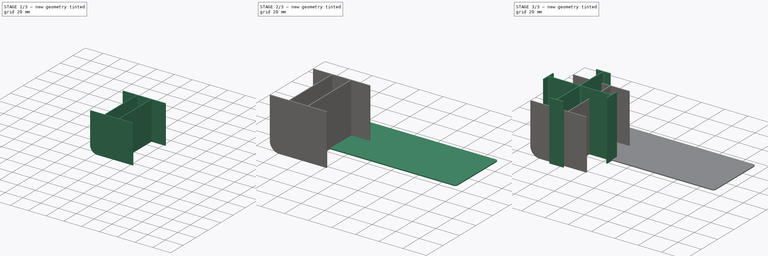
[diagram: build sequence overview — one tinted view per stage of 3, left to right]
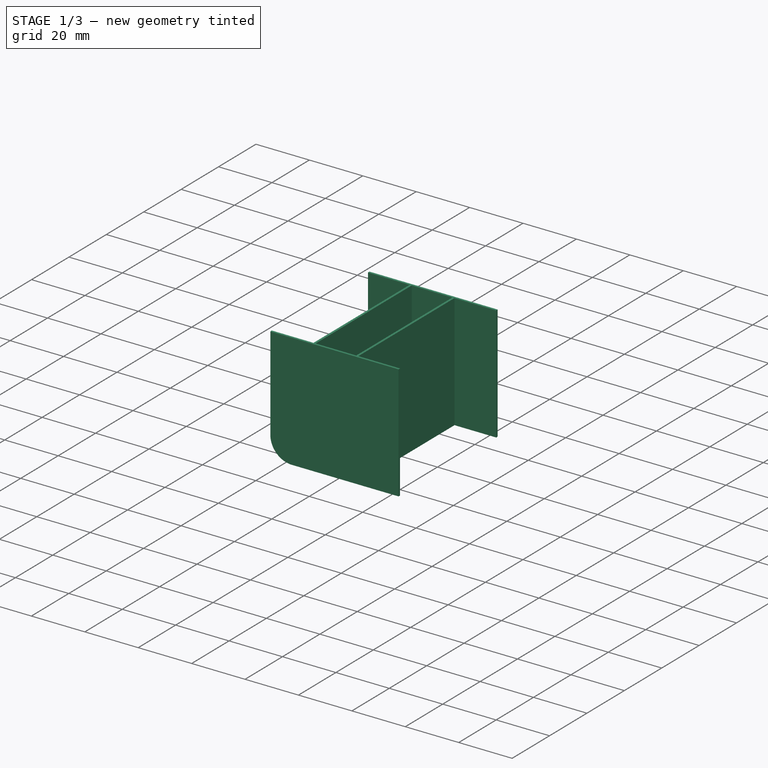
[diagram: stage 1 of 3 — iso view after this stage's code; geometry added in this stage tinted green]
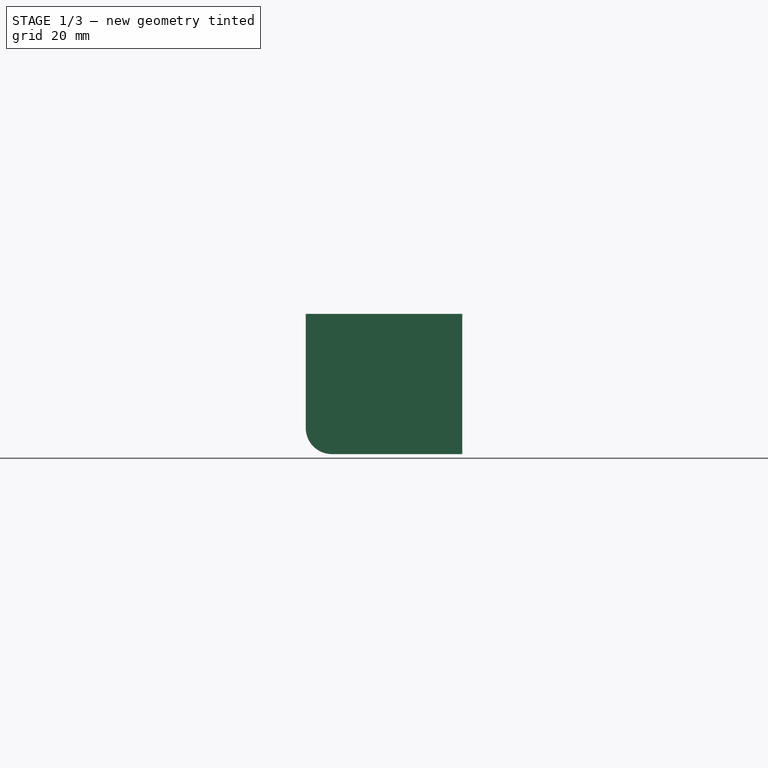
[diagram: stage 1 of 3 — front view after this stage's code; geometry added in this stage tinted green]
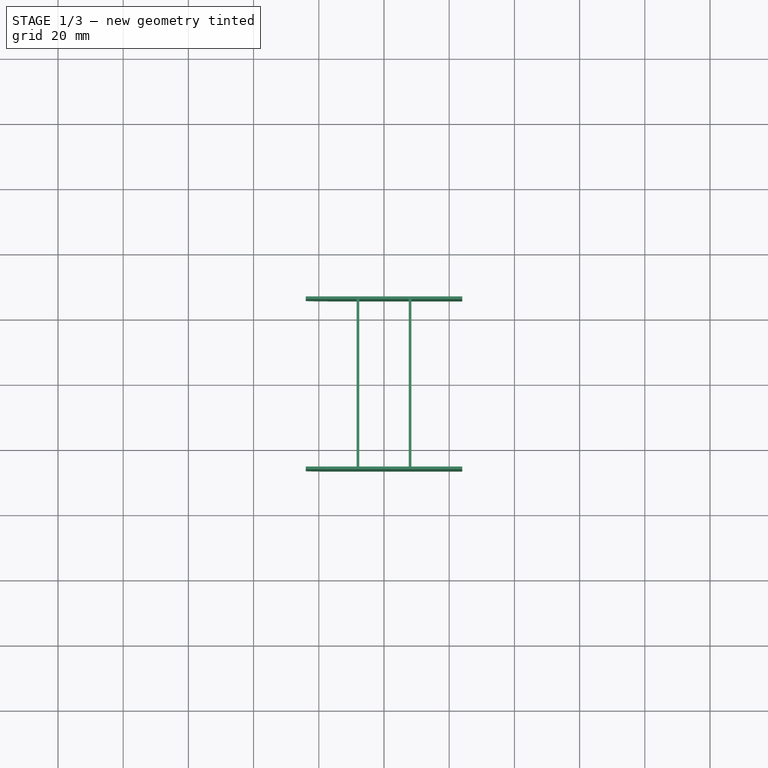
[diagram: stage 1 of 3 — top view after this stage's code; geometry added in this stage tinted green]
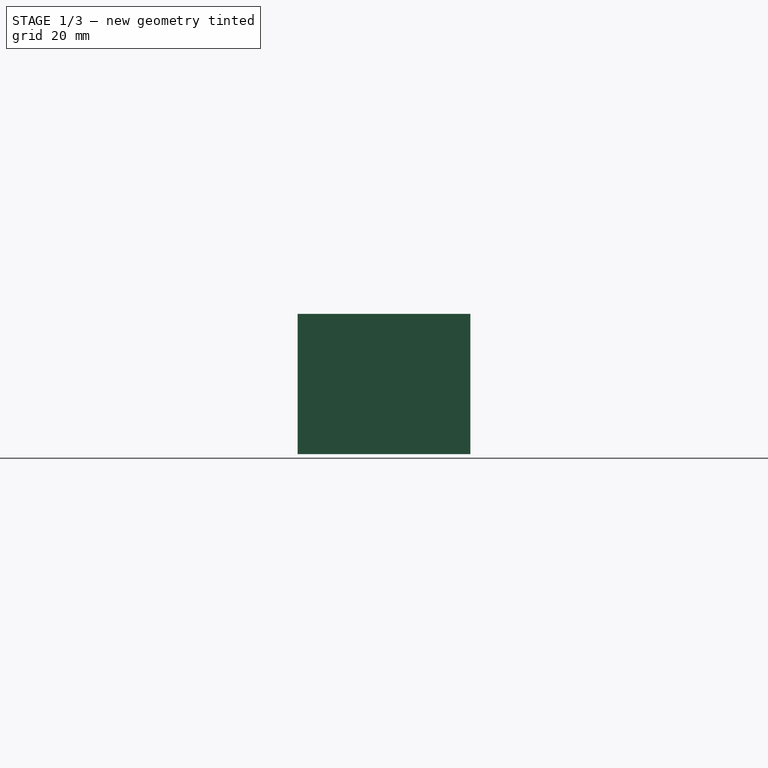
[diagram: stage 1 of 3 — right view after this stage's code; geometry added in this stage tinted green]
FCSTD DOCUMENT  (FreeCAD 0.19R24366 (Git))
Label: BoxSep
License: All rights reserved
LicenseURL: http://en.wikipedia.org/wiki/All_rights_reserved
objects: PartDesign::Fillet×3, PartDesign::Body×3, Sketcher::SketchObject×2, PartDesign::Pad×2, PartDesign::AdditiveBox×1
note: 17 computed .brp shape members not serialized (recipe doc carries the construction recipe); baked Part::Feature solids carry a one-line shape summary decoded from their .brp

FEATURE [PartDesign::Body] Body
  Group = -> [Box,Fillet001]
  Origin = -> Origin003
  Tip = -> Fillet001
FEATURE [Sketcher::SketchObject] Sketch001
  FullyConstrained = true
  MapMode = 5
  Support = -> [XY_Plane004]
  sketch-geometry (24):
    g0: LineSegment StartX=-24 StartY=26.5 StartZ=0 EndX=24 EndY=26.5 EndZ=0
    g1: LineSegment StartX=24 StartY=26.5 StartZ=0 EndX=24 EndY=-26.5 EndZ=0
    g2: LineSegment StartX=-24 StartY=-26.5 StartZ=0 EndX=-24 EndY=26.5 EndZ=0
    g3: LineSegment StartX=-24 StartY=-26.5 StartZ=0 EndX=-8 EndY=-26.5 EndZ=0
    g4: LineSegment StartX=-8 StartY=-26.5 StartZ=0 EndX=8 EndY=-26.5 EndZ=0
    g5: LineSegment StartX=8 StartY=-26.5 StartZ=0 EndX=24 EndY=-26.5 EndZ=0
    g6: LineSegment StartX=-8 StartY=-26.5 StartZ=0 EndX=-8 EndY=26.5 EndZ=0
    g7: LineSegment StartX=8 StartY=-26.5 StartZ=0 EndX=8 EndY=26.5 EndZ=0
    g8: LineSegment StartX=-24 StartY=26.5 StartZ=0 EndX=-24 EndY=25.7 EndZ=0
    g9: LineSegment StartX=-24 StartY=25.7 StartZ=0 EndX=-8.4 EndY=25.7 EndZ=0
    g10: LineSegment StartX=-8.4 StartY=25.7 StartZ=0 EndX=-8.4 EndY=-25.7 EndZ=0
    g11: LineSegment StartX=-8.4 StartY=-25.7 StartZ=0 EndX=-24 EndY=-25.7 EndZ=0
    g12: LineSegment StartX=-24 StartY=-25.7 StartZ=0 EndX=-24 EndY=-26.5 EndZ=0
    g13: LineSegment StartX=-7.6 StartY=25.7 StartZ=0 EndX=7.6 EndY=25.7 EndZ=0
    g14: LineSegment StartX=7.6 StartY=25.7 StartZ=0 EndX=7.6 EndY=-25.7 EndZ=0
    g15: LineSegment StartX=7.6 StartY=-25.7 StartZ=0 EndX=-7.6 EndY=-25.7 EndZ=0
    g16: LineSegment StartX=-7.6 StartY=-25.7 StartZ=0 EndX=-7.6 EndY=25.7 EndZ=0
    g17: LineSegment StartX=-8.4 StartY=25.7 StartZ=0 EndX=-7.6 EndY=25.7 EndZ=0
    g18: LineSegment StartX=24 StartY=26.5 StartZ=0 EndX=24 EndY=25.7 EndZ=0
    g19: LineSegment StartX=24 StartY=25.7 StartZ=0 EndX=8.4 EndY=25.7 EndZ=0
    g20: LineSegment StartX=8.4 StartY=25.7 StartZ=0 EndX=8.4 EndY=-25.7 EndZ=0
    g21: LineSegment StartX=8.4 StartY=-25.7 StartZ=0 EndX=24 EndY=-25.7 EndZ=0
    g22: LineSegment StartX=24 StartY=-25.7 StartZ=0 EndX=24 EndY=-26.5 EndZ=0
    g23: LineSegment StartX=7.6 StartY=25.7 StartZ=0 EndX=8.4 EndY=25.7 EndZ=0
  constraints (65):
    c: Coincident(g0,g1)
    c: Coincident(g2,g0)
    c: Horizontal(g0)
    c: Vertical(g1)
    c: Vertical(g2)
    c: DistanceX(g0,g0) = 48
    c: DistanceY(g2,g2) = 53
    c: Symmetric(g0,g1,g-1)  '__ANCHOR__'
    c: Coincident(g2,g3)
    c: Horizontal(g3)
    c: Coincident(g3,g4)
    c: Horizontal(g4)
    c: Coincident(g4,g5)
    c: Coincident(g5,g1)
    c: Horizontal(g5)
    c: Equal(g5,g4)
    c: Equal(g4,g3)
    c: Coincident(g6,g3)
    c: PointOnObject(g6,g0)
    c: Vertical(g6)
    c: Coincident(g7,g4)
    c: PointOnObject(g7,g0)
    c: Vertical(g7)
    c: Coincident(g8,g0)
    c: Vertical(g8)
    c: Distance(g8) = 0.8
    c: Coincident(g9,g8)
    c: Horizontal(g9)
    c: Coincident(g10,g9)
    c: Vertical(g10)
    c: Coincident(g11,g10)
    c: Horizontal(g11)
    c: Coincident(g12,g11)
    c: Coincident(g12,g3)
    c: Vertical(g12)
    c: Equal(g12,g8)
    c: Coincident(g13,g14)
    c: Coincident(g14,g15)
    c: Coincident(g15,g16)
    c: Coincident(g16,g13)
    c: Horizontal(g13)
    c: Horizontal(g15)
    c: Vertical(g14)
    c: Vertical(g16)
    c: PointOnObject(g15,g11)
    c: Coincident(g17,g9)
    c: Coincident(g17,g13)
    c: Symmetric(g9,g13,g6)
    c: Equal(g17,g12)
    c: Coincident(g18,g0)
    c: Coincident(g19,g18)
    c: Horizontal(g19)
    c: Coincident(g20,g19)
    c: Vertical(g20)
    c: Coincident(g21,g20)
    c: Horizontal(g21)
    c: Coincident(g22,g21)
    c: Coincident(g22,g5)
    c: Vertical(g18)
    c: Vertical(g22)
    c: PointOnObject(g20,g15)
    c: Coincident(g23,g13)
    c: Coincident(g23,g19)
    c: Equal(g23,g17)
    c: Symmetric(g13,g19,g7)
FEATURE [PartDesign::Pad] Pad001
  Direction = (1,1,1)
  Length = 43
  Length2 = 100
  Profile = -> Sketch001
  Type = 0
FEATURE [PartDesign::Fillet] Fillet002
  Base = -> Pad001 [Edge3,Edge33]
  BaseFeature = -> Pad001
  Radius = 8
  SupportTransform = false
FEATURE [PartDesign::Body] Body001  label="ScrewSep3-side"
  Group = -> [Sketch001,Pad001,Fillet002]
  Origin = -> Origin004
  Tip = -> Fillet002
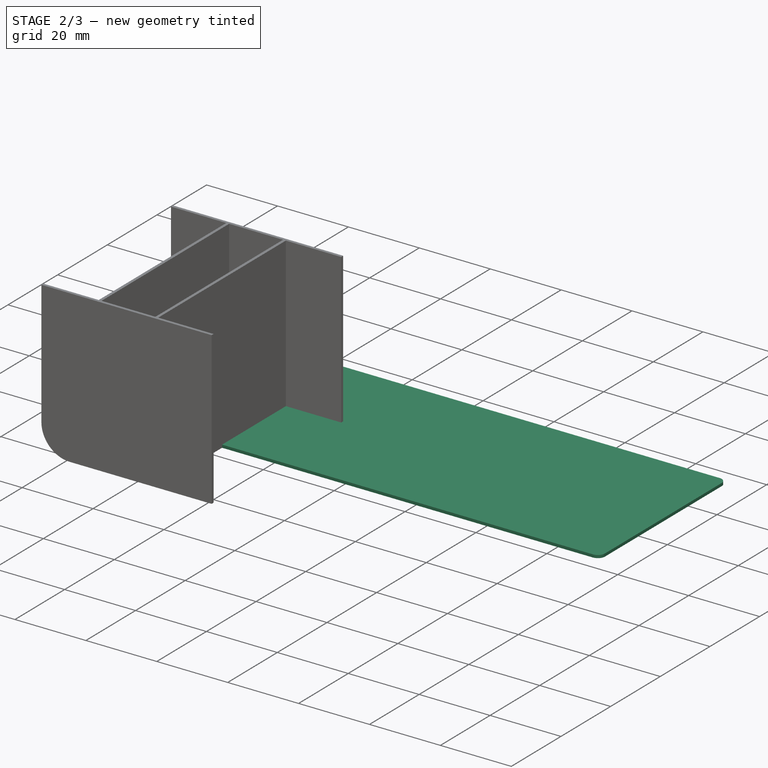
[diagram: stage 2 of 3 — iso view after this stage's code; geometry added in this stage tinted green]
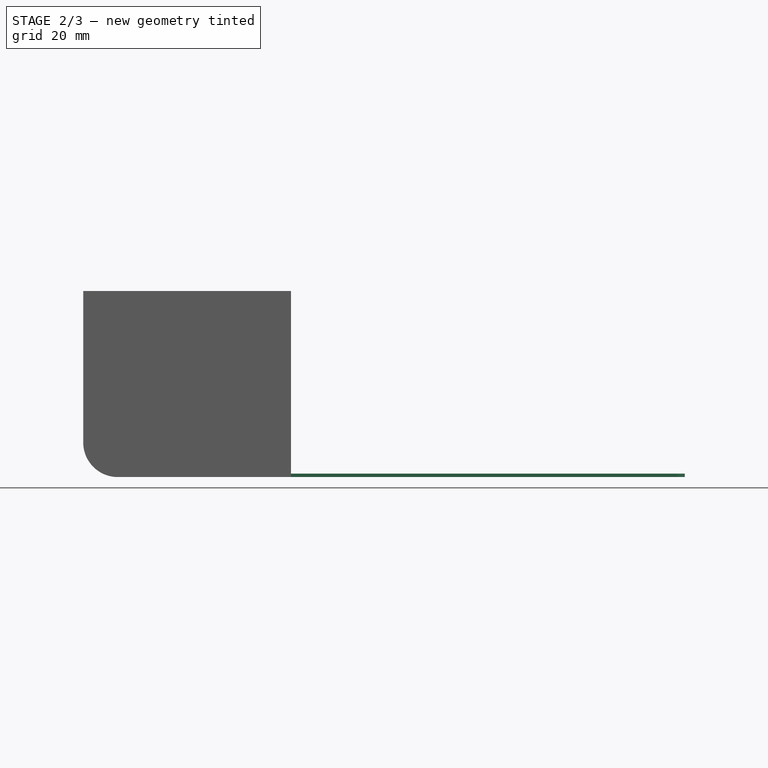
[diagram: stage 2 of 3 — front view after this stage's code; geometry added in this stage tinted green]
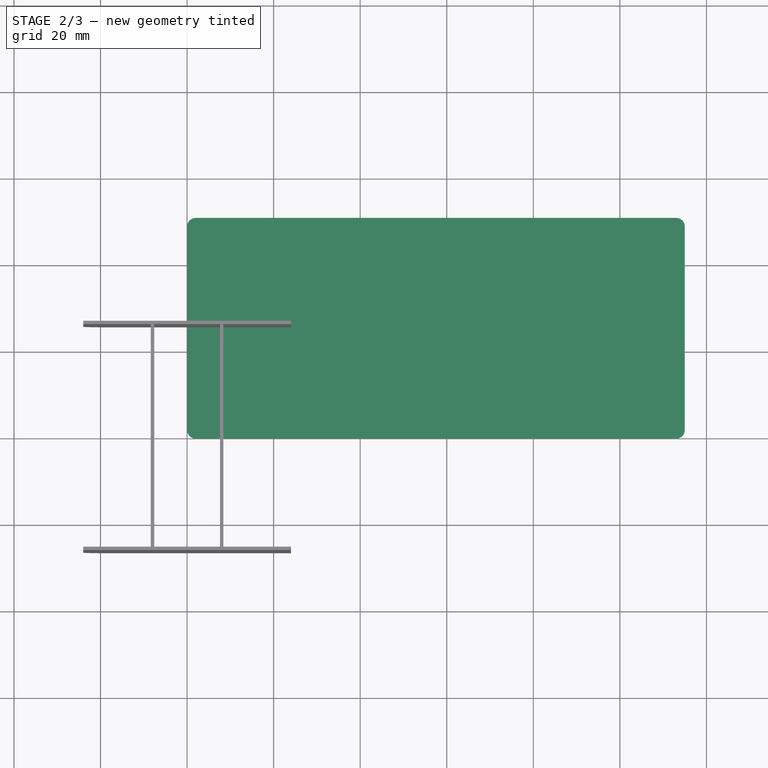
[diagram: stage 2 of 3 — top view after this stage's code; geometry added in this stage tinted green]
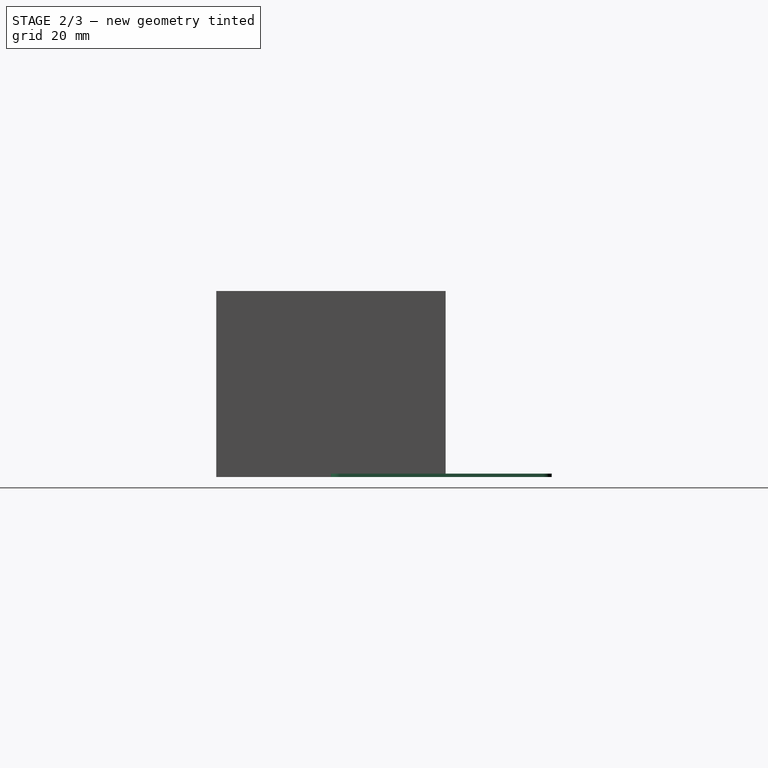
[diagram: stage 2 of 3 — right view after this stage's code; geometry added in this stage tinted green]
FEATURE [PartDesign::Body] FilletBody  label="CrossBody"
  Group = -> [Sketch,Pad,Fillet]
  Origin = -> Origin001
  Tip = -> Fillet
FEATURE [PartDesign::AdditiveBox] Box
  AttacherType = Attacher::AttachEngine3D
  Height = 0.8
  Length = 115
  MapMode = 5
  Support = -> [XY_Plane003]
  Width = 51
FEATURE [PartDesign::Fillet] Fillet001  label="Corners"
  Base = -> Box [Edge3,Edge7,Edge5,Edge1]
  BaseFeature = -> Box
  Radius = 2
  SupportTransform = false
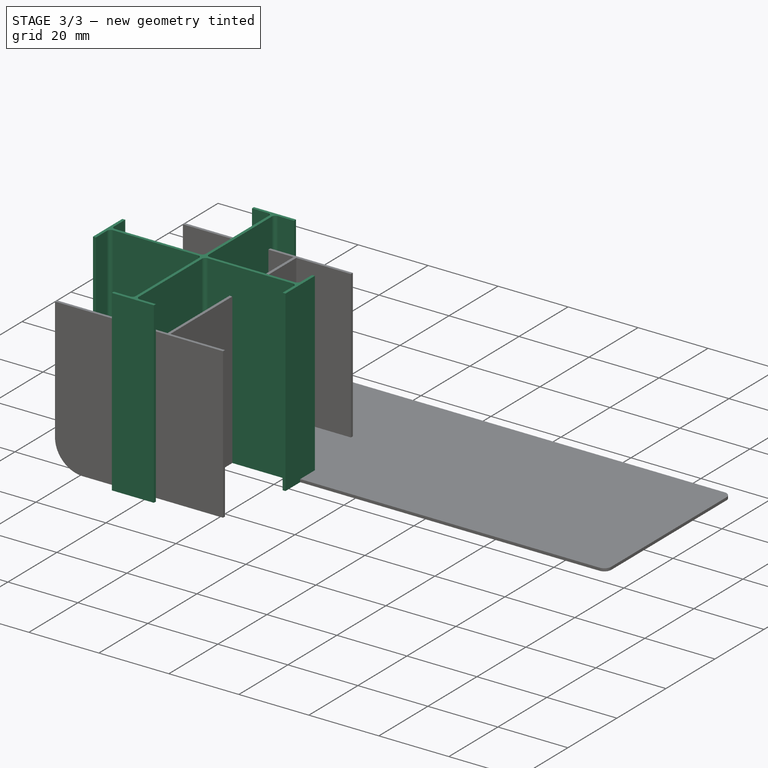
[diagram: stage 3 of 3 — iso view after this stage's code; geometry added in this stage tinted green]
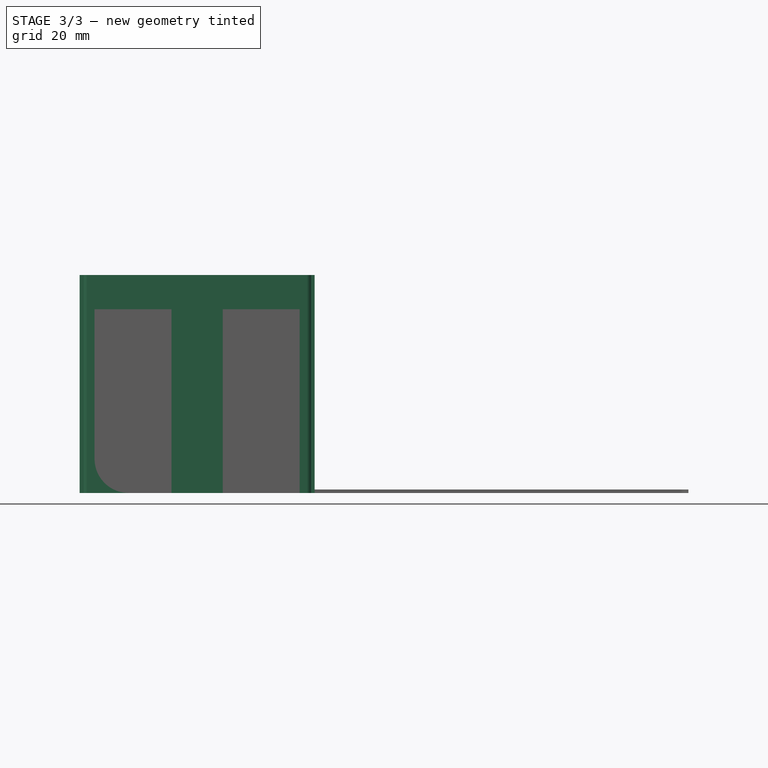
[diagram: stage 3 of 3 — front view after this stage's code; geometry added in this stage tinted green]
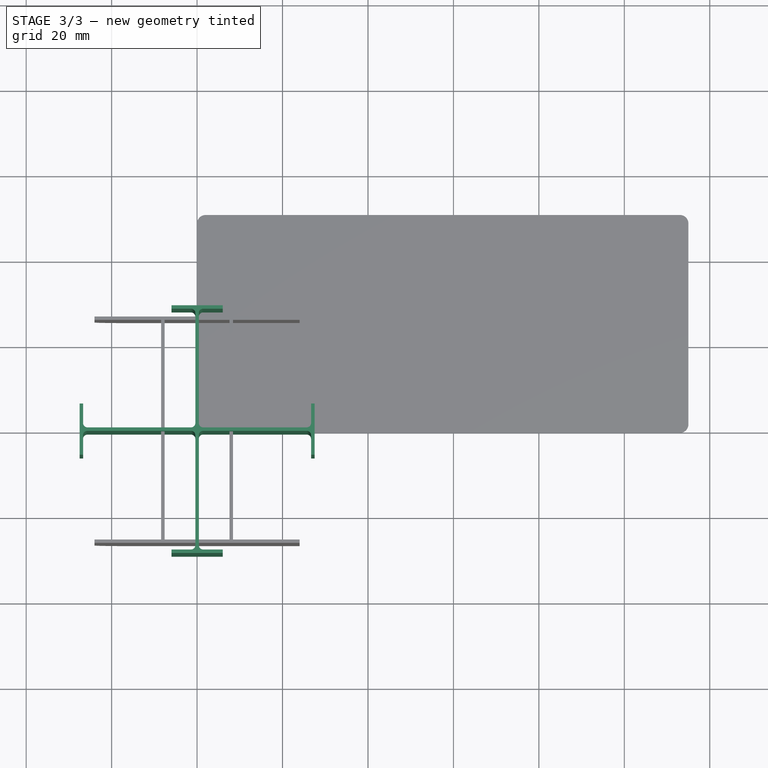
[diagram: stage 3 of 3 — top view after this stage's code; geometry added in this stage tinted green]
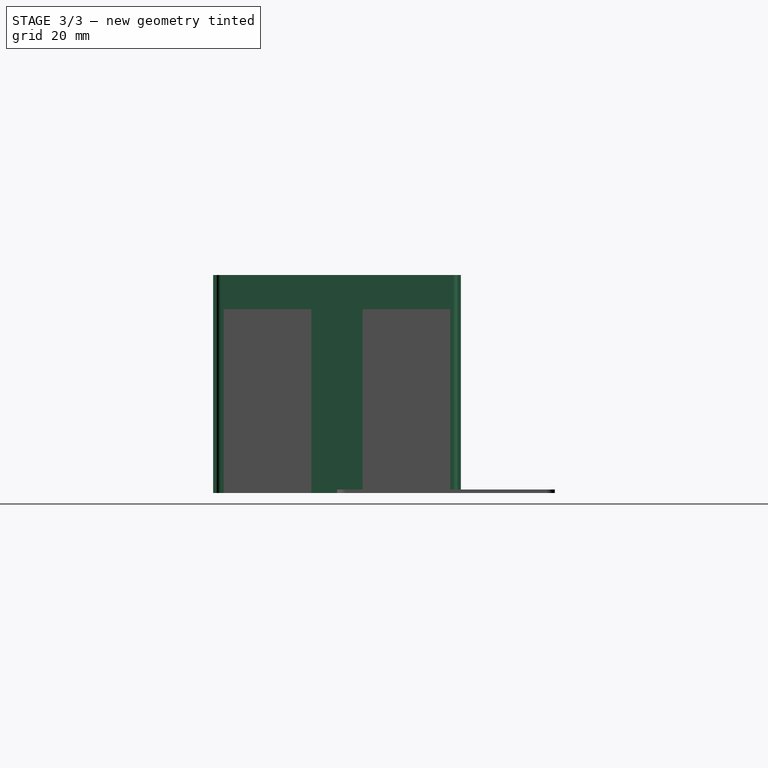
[diagram: stage 3 of 3 — right view after this stage's code; geometry added in this stage tinted green]
FEATURE [Sketcher::SketchObject] Sketch  label="Cross"
  FullyConstrained = false
  MapMode = 5
  Support = -> [XY_Plane001]
  sketch-geometry (36):
    g0: LineSegment StartX=-27.5 StartY=29 StartZ=0 EndX=27.5 EndY=29 EndZ=0
    g1: LineSegment StartX=27.5 StartY=29 StartZ=0 EndX=27.5 EndY=-29 EndZ=0
    g2: LineSegment StartX=27.5 StartY=-29 StartZ=0 EndX=-27.5 EndY=-29 EndZ=0
    g3: LineSegment StartX=-27.5 StartY=-29 StartZ=0 EndX=-27.5 EndY=29 EndZ=0
    g4: LineSegment StartX=-27.5 StartY=6 StartZ=0 EndX=-27.5 EndY=-6 EndZ=0
    g5: LineSegment StartX=27.5 StartY=6 StartZ=0 EndX=27.5 EndY=-6 EndZ=0
    g6: LineSegment StartX=-6 StartY=29 StartZ=0 EndX=6 EndY=29 EndZ=0
    g7: LineSegment StartX=-6 StartY=-29 StartZ=0 EndX=6 EndY=-29 EndZ=0
    g8: LineSegment StartX=-27.5 StartY=6 StartZ=0 EndX=-26.68 EndY=6 EndZ=0
    g9: LineSegment StartX=-27.5 StartY=-6 StartZ=0 EndX=-26.68 EndY=-6 EndZ=0
    g10: LineSegment StartX=-26.68 StartY=6 StartZ=0 EndX=-26.68 EndY=0.41 EndZ=0
    g11: LineSegment StartX=-26.68 StartY=-6 StartZ=0 EndX=-26.68 EndY=-0.41 EndZ=0
    g12: LineSegment StartX=-26.68 StartY=0.41 StartZ=0 EndX=-0.41 EndY=0.41 EndZ=0
    g13: LineSegment StartX=-26.68 StartY=-0.41 StartZ=0 EndX=-0.41 EndY=-0.41 EndZ=0
    g14: LineSegment StartX=-6 StartY=29 StartZ=0 EndX=-6 EndY=28.18 EndZ=0
    g15: LineSegment StartX=-6 StartY=28.18 StartZ=0 EndX=-0.41 EndY=28.18 EndZ=0
    g16: LineSegment StartX=-0.41 StartY=28.18 StartZ=0 EndX=-0.41 EndY=0.41 EndZ=0
    g17: LineSegment StartX=6 StartY=29 StartZ=0 EndX=6 EndY=28.18 EndZ=0
    g18: LineSegment StartX=6 StartY=28.18 StartZ=0 EndX=0.41 EndY=28.18 EndZ=0
    g19: LineSegment StartX=0.41 StartY=28.18 StartZ=0 EndX=0.41 EndY=0.41 EndZ=0
    g20: LineSegment StartX=-0.41 StartY=0.41 StartZ=0 EndX=0.41 EndY=0.41 EndZ=0
    g21: LineSegment StartX=0.41 StartY=0.41 StartZ=0 EndX=0.41 EndY=-0.41 EndZ=0
    g22: LineSegment StartX=0.41 StartY=-0.41 StartZ=0 EndX=-0.41 EndY=-0.41 EndZ=0
    g23: LineSegment StartX=-0.41 StartY=-0.41 StartZ=0 EndX=-0.41 EndY=0.41 EndZ=0
    g24: LineSegment StartX=27.5 StartY=6 StartZ=0 EndX=26.68 EndY=6 EndZ=0
    g25: LineSegment StartX=26.68 StartY=6 StartZ=0 EndX=26.68 EndY=0.41 EndZ=0
    g26: LineSegment StartX=26.68 StartY=0.41 StartZ=0 EndX=0.41 EndY=0.41 EndZ=0
    g27: LineSegment StartX=27.5 StartY=-6 StartZ=0 EndX=26.68 EndY=-6 EndZ=0
    g28: LineSegment StartX=26.68 StartY=-6 StartZ=0 EndX=26.68 EndY=-0.41 EndZ=0
    g29: LineSegment StartX=26.68 StartY=-0.41 StartZ=0 EndX=0.41 EndY=-0.41 EndZ=0
    g30: LineSegment StartX=-0.41 StartY=-0.41 StartZ=0 EndX=-0.41 EndY=-28.18 EndZ=0
    g31: LineSegment StartX=-0.41 StartY=-28.18 StartZ=0 EndX=-6 EndY=-28.18 EndZ=0
    g32: LineSegment StartX=-6 StartY=-28.18 StartZ=0 EndX=-6 EndY=-29 EndZ=0
    g33: LineSegment StartX=0.41 StartY=-0.41 StartZ=0 EndX=0.41 EndY=-28.18 EndZ=0
    g34: LineSegment StartX=0.41 StartY=-28.18 StartZ=0 EndX=6 EndY=-28.18 EndZ=0
    g35: LineSegment StartX=6 StartY=-28.18 StartZ=0 EndX=6 EndY=-29 EndZ=0
  constraints (103):
    c: Coincident(g0,g1)
    c: Coincident(g1,g2)
    c: Coincident(g2,g3)
    c: Coincident(g3,g0)
    c: Horizontal(g0)
    c: Horizontal(g2)
    c: Vertical(g1)
    c: Vertical(g3)
    c: Symmetric(g0,g1,g-1)
    c: DistanceY(g3,g3) = 58
    c: DistanceX(g0,g0) = 55
    c: PointOnObject(g4,g3)
    c: PointOnObject(g4,g3)
    c: Symmetric(g4,g4,g-1)
    c: DistanceY(g4,g4) = 12
    c: PointOnObject(g5,g1)
    c: PointOnObject(g5,g1)
    c: Symmetric(g5,g5,g-1)
    c: PointOnObject(g6,g0)
    c: PointOnObject(g6,g0)
    c: PointOnObject(g7,g2)
    c: PointOnObject(g7,g2)
    c: Symmetric(g7,g7,g-2)
    c: Symmetric(g6,g6,g-2)
    c: Equal(g4,g5)
    c: Equal(g5,g6)
    c: Equal(g6,g7)
    c: Coincident(g8,g4)
    c: Horizontal(g8)
    c: Coincident(g9,g4)
    c: Horizontal(g9)
    c: DistanceX(g8,g8) = 0.82
    c: Equal(g8,g9)
    c: Coincident(g10,g8)
    c: Vertical(g10)
    c: Coincident(g11,g9)
    c: Vertical(g11)
    c: Equal(g10,g11)
    c: Coincident(g12,g10)
    c: Horizontal(g12)
    c: Coincident(g13,g11)
    c: Horizontal(g13)
    c: Coincident(g6,g14)
    c: Vertical(g14)
    c: Coincident(g14,g15)
    c: Horizontal(g15)
    c: Coincident(g15,g16)
    c: Coincident(g16,g12)
    c: Vertical(g16)
    c: Coincident(g6,g17)
    c: Vertical(g17)
    c: Coincident(g17,g18)
    c: Horizontal(g18)
    c: Coincident(g18,g19)
    c: Vertical(g19)
    c: Coincident(g20,g21)
    c: Coincident(g21,g22)
    c: Coincident(g22,g23)
    c: Coincident(g23,g20)
    c: Horizontal(g20)
    c: Horizontal(g22)
    c: Vertical(g21)
    c: Vertical(g23)
    c: Coincident(g20,g12)
    c: Equal(g8,g23)
    c: Symmetric(g12,g21,g-1)
    c: Equal(g23,g20)
    c: Equal(g8,g14)
    c: Coincident(g13,g22)
    c: Coincident(g19,g20)
    c: Equal(g14,g17)
    c: Coincident(g5,g24)
    c: Horizontal(g24)
    c: Coincident(g24,g25)
    c: Vertical(g25)
    c: Coincident(g25,g26)
    c: Coincident(g26,g19)
    c: Horizontal(g26)
    c: Coincident(g5,g27)
    c: Horizontal(g27)
    c: Coincident(g27,g28)
    c: Vertical(g28)
    c: Coincident(g28,g29)
    c: Coincident(g29,g21)
    c: Horizontal(g29)
    c: Equal(g17,g24)
    c: Equal(g24,g27)
    c: Coincident(g13,g30)
    c: Vertical(g30)
    c: Coincident(g30,g31)
    c: Horizontal(g31)
    c: Coincident(g31,g32)
    c: Coincident(g32,g7)
    c: Vertical(g32)
    c: Coincident(g21,g33)
    c: Vertical(g33)
    c: Coincident(g33,g34)
    c: Horizontal(g34)
    c: Coincident(g34,g35)
    c: Coincident(g35,g7)
    c: Vertical(g35)
    c: Equal(g27,g35)
    c: Equal(g35,g32)
FEATURE [PartDesign::Pad] Pad  label="_Cross"
  AllowMultiFace = false
  Direction = (1,1,1)
  Length = 51
  Length2 = 100
  Profile = -> Sketch
  Type = 0
FEATURE [PartDesign::Fillet] Fillet
  Base = -> Pad [Edge11,Edge35,Edge59,Edge14,Edge74,Edge38,Edge77,Edge17,Edge53,Edge56,Edge32,Edge80]
  BaseFeature = -> Pad
  Radius = 1
  SupportTransform = false
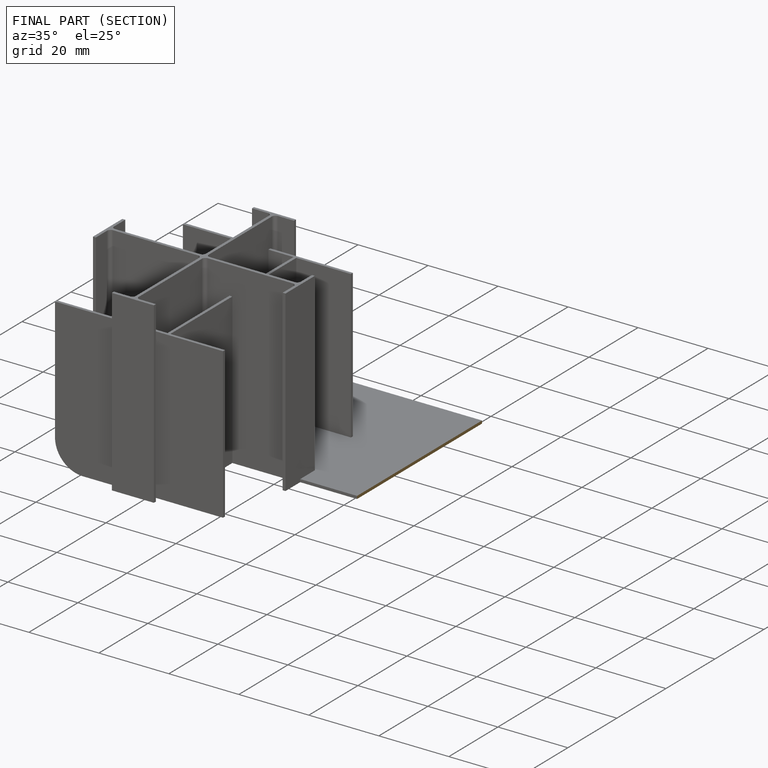
[diagram: finished part — half-section view (interior)]
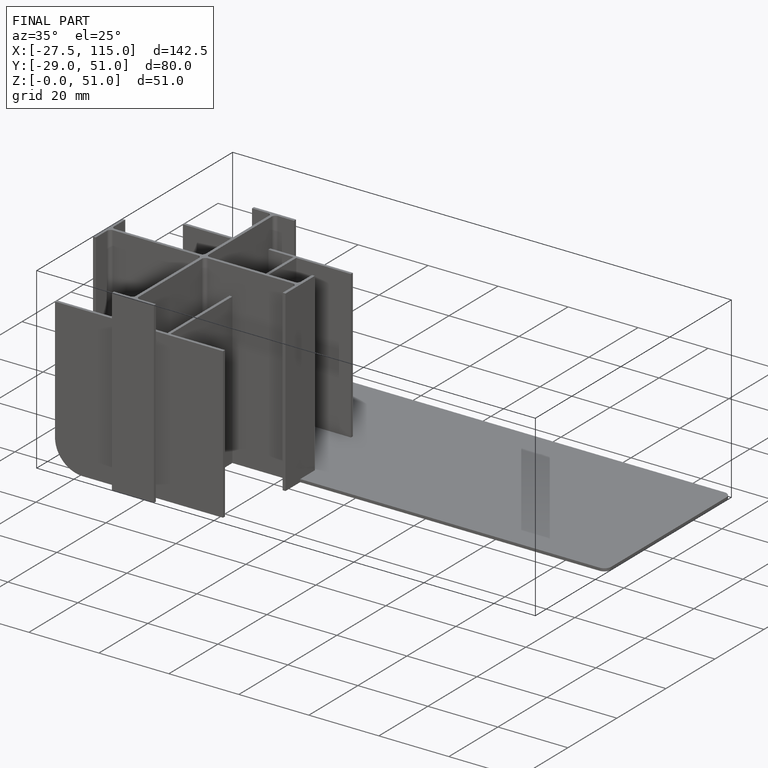
[diagram: finished part — iso view with bounding-box wireframe]
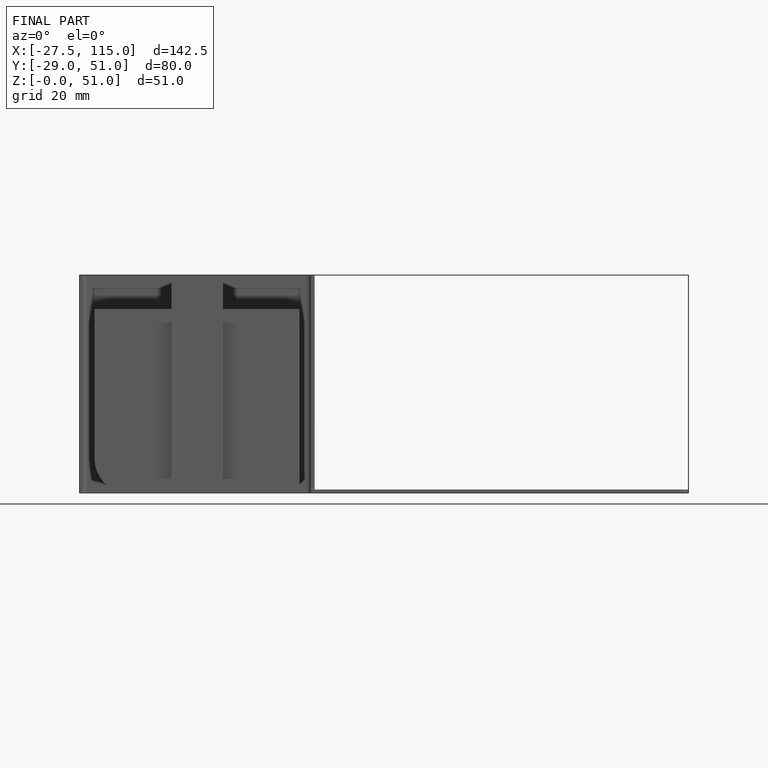
[diagram: finished part — front view with bounding-box wireframe]
